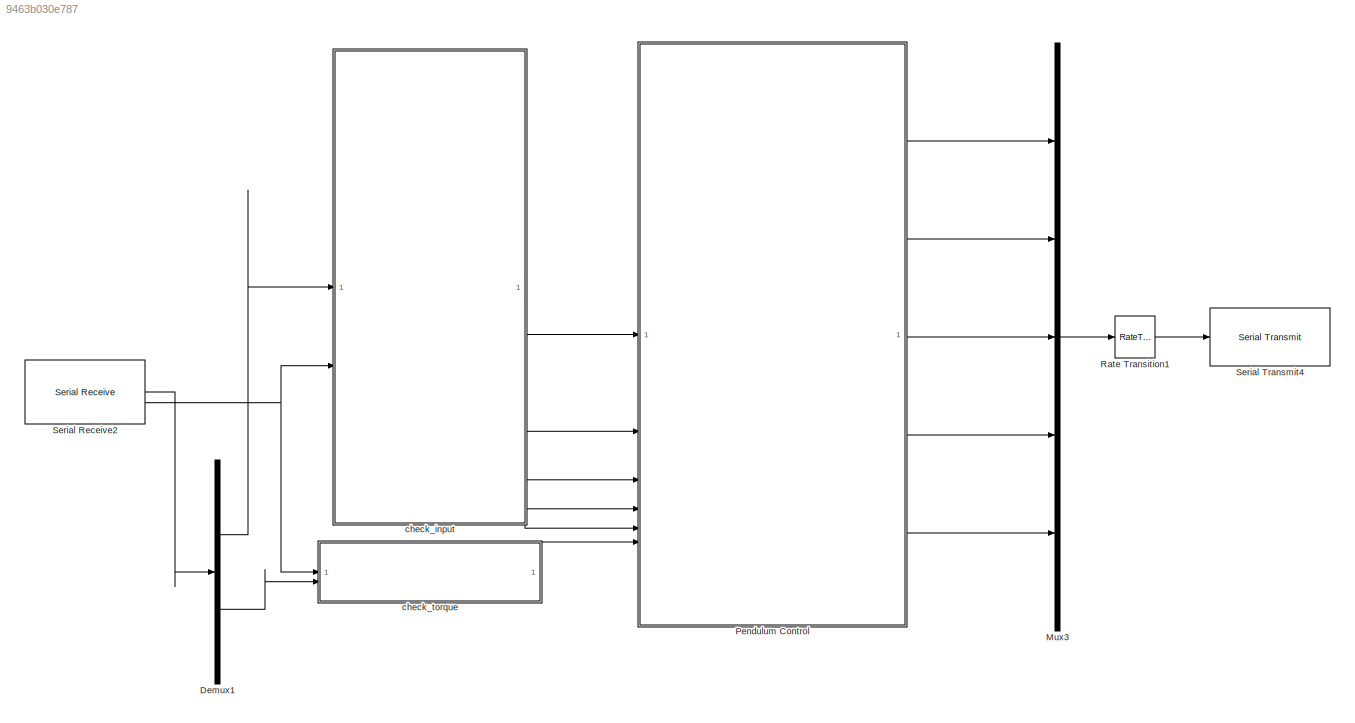
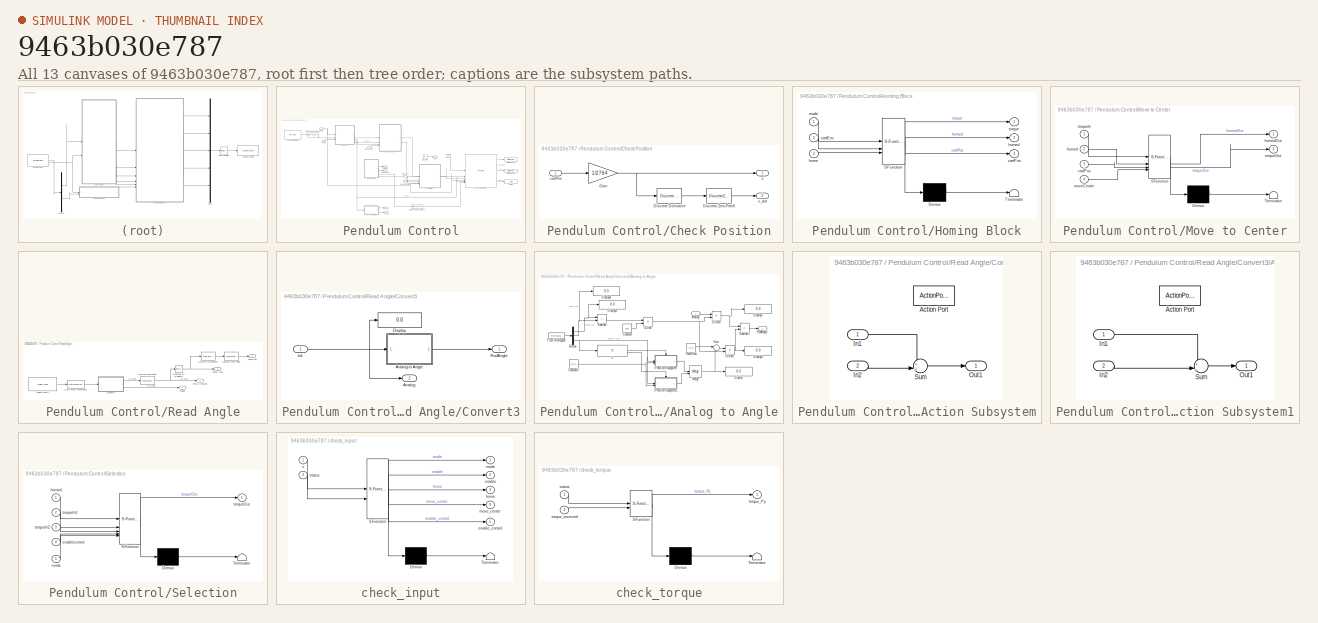
[diagram: thumbnail index - all 13 canvases of the model, root first then tree order]
MODEL slx_9463b030e787
KIND model
CONFIG AbsTol = auto
CONFIG EnableMultiTasking = on
CONFIG FixedStep = Tc
CONFIG MaxStep = auto
CONFIG MinStep = auto
CONFIG RelTol = 1e-3
CONFIG SampleTimeConstraint = Unconstrained
CONFIG SolverName = FixedStepAuto
CONFIG StartTime = 0.0
CONFIG StopTime = 10.0
BLOCK [Demux] Demux1
  Outputs = 2
BLOCK [Mux] Mux3
  DisplayOption = bar
  Inputs = 5
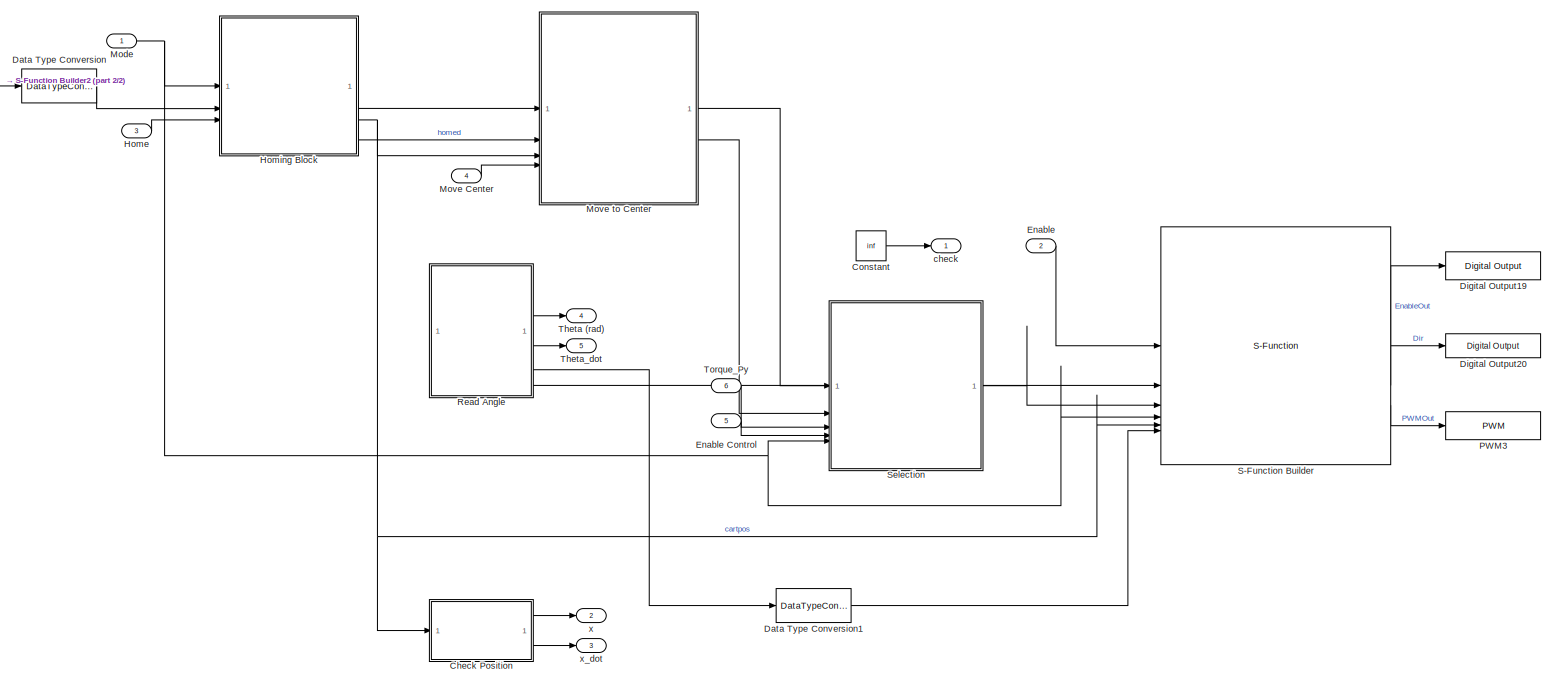
[diagram: Pendulum Control - part 1/2, most of the canvas]
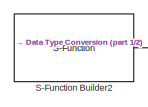
[diagram: Pendulum Control - part 2/2, top left region]
BLOCK [SubSystem] Pendulum Control
BLOCK [SubSystem] Pendulum Control/Check Position
BLOCK [Reference] Pendulum Control/Check Position/Discrete Derivative  REF=simulink/Discrete/Discrete Derivative
  SourceBlock = simulink/Discrete/Discrete Derivative
  SourceType = Discrete Derivative
BLOCK [DiscreteZeroPole] Pendulum Control/Check Position/Discrete Zero-Pole6
  Gain = 20*Tc/2
  Poles = [e^(-20*Tc)]
  SampleTime = -1
  Zeros = [-e^(-20*Tc)]
BLOCK [Gain] Pendulum Control/Check Position/Gain
  Gain = 1/2764
BLOCK [Inport] Pendulum Control/Check Position/cartPos
BLOCK [Outport] Pendulum Control/Check Position/x
BLOCK [Outport] Pendulum Control/Check Position/x_dot
  Port = 2
BLOCK [Constant] Pendulum Control/Constant
  OutDataTypeStr = double
  Value = inf
BLOCK [DataTypeConversion] Pendulum Control/Data Type Conversion
  RndMeth = Floor
  SaturateOnIntegerOverflow = off
BLOCK [DataTypeConversion] Pendulum Control/Data Type Conversion1
  RndMeth = Floor
  SaturateOnIntegerOverflow = off
BLOCK [Reference] Pendulum Control/Digital Output19  REF=arduinolib/Digital Output
  SourceBlock = arduinolib/Digital Output
  SourceType = Arduino Digital Output
BLOCK [Reference] Pendulum Control/Digital Output20  REF=arduinolib/Digital Output
  SourceBlock = arduinolib/Digital Output
  SourceType = Arduino Digital Output
BLOCK [Inport] Pendulum Control/Enable
  Port = 2
BLOCK [Inport] Pendulum Control/Enable Control
  Port = 5
BLOCK [Inport] Pendulum Control/Home
  Port = 3
BLOCK [SubSystem] Pendulum Control/Homing Block
  ErrorFcn = Stateflow.Translate.translate
  PermitHierarchicalResolution = ExplicitOnly
  SFBlockType = MATLAB Function
  TreatAsAtomicUnit = on
BLOCK [Demux] Pendulum Control/Homing Block/ Demux 
  Outputs = 1
BLOCK [S-Function] Pendulum Control/Homing Block/ SFunction 
  EnableBusSupport = on
  FunctionName = sf_sfun
  PortCounts = [3 4]
  SFcnIsStateOwnerBlock = off
  SFunctionDeploymentMode = off
  Tag = Stateflow S-Function 5
BLOCK [Terminator] Pendulum Control/Homing Block/ Terminator 
BLOCK [Inport] Pendulum Control/Homing Block/cartEnc
  Port = 2
BLOCK [Outport] Pendulum Control/Homing Block/cartPos
  Port = 3
BLOCK [Inport] Pendulum Control/Homing Block/home
  Port = 3
BLOCK [Outport] Pendulum Control/Homing Block/homed
  Port = 2
BLOCK [Inport] Pendulum Control/Homing Block/mode
BLOCK [Outport] Pendulum Control/Homing Block/torque
BLOCK [Inport] Pendulum Control/Mode
BLOCK [Inport] Pendulum Control/Move Center
  Port = 4
BLOCK [SubSystem] Pendulum Control/Move to Center
  ErrorFcn = Stateflow.Translate.translate
  PermitHierarchicalResolution = ExplicitOnly
  SFBlockType = MATLAB Function
  TreatAsAtomicUnit = on
BLOCK [Demux] Pendulum Control/Move to Center/ Demux 
  Outputs = 1
BLOCK [S-Function] Pendulum Control/Move to Center/ SFunction 
  EnableBusSupport = on
  FunctionName = sf_sfun
  PortCounts = [4 3]
  SFcnIsStateOwnerBlock = off
  SFunctionDeploymentMode = off
  Tag = Stateflow S-Function 6
BLOCK [Terminator] Pendulum Control/Move to Center/ Terminator 
BLOCK [Inport] Pendulum Control/Move to Center/cartPos
  Port = 3
BLOCK [Inport] Pendulum Control/Move to Center/homed
  Port = 2
BLOCK [Outport] Pendulum Control/Move to Center/homedOut
BLOCK [Inport] Pendulum Control/Move to Center/moveCenter
  Port = 4
BLOCK [Inport] Pendulum Control/Move to Center/torqueIn
BLOCK [Outport] Pendulum Control/Move to Center/torqueOut
  Port = 2
BLOCK [Reference] Pendulum Control/PWM3  REF=arduinolib/PWM
  SourceBlock = arduinolib/PWM
  SourceType = Arduino PWM
BLOCK [SubSystem] Pendulum Control/Read Angle
BLOCK [Outport] Pendulum Control/Read Angle/Analog
  Port = 4
BLOCK [Reference] Pendulum Control/Read Angle/Analog Input3  REF=arduinolib/Analog Input
  SourceBlock = arduinolib/Analog Input
  SourceType = Arduino Analog Input
BLOCK [SubSystem] Pendulum Control/Read Angle/Convert3
BLOCK [Outport] Pendulum Control/Read Angle/Convert3/Analog
  Port = 2
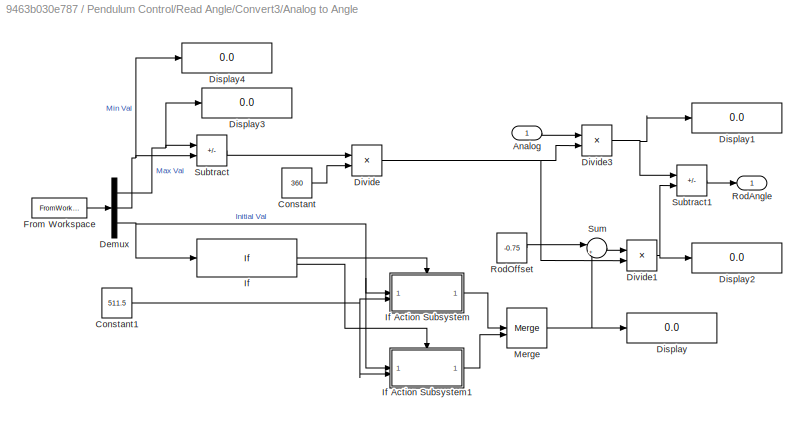
BLOCK [SubSystem] Pendulum Control/Read Angle/Convert3/Analog to Angle
BLOCK [Inport] Pendulum Control/Read Angle/Convert3/Analog to Angle/Analog
BLOCK [Constant] Pendulum Control/Read Angle/Convert3/Analog to Angle/Constant
  Value = 360
BLOCK [Constant] Pendulum Control/Read Angle/Convert3/Analog to Angle/Constant1
  Value = 511.5
BLOCK [Demux] Pendulum Control/Read Angle/Convert3/Analog to Angle/Demux
  Outputs = 3
BLOCK [Display] Pendulum Control/Read Angle/Convert3/Analog to Angle/Display
  Decimation = 1
BLOCK [Display] Pendulum Control/Read Angle/Convert3/Analog to Angle/Display1
  Decimation = 1
BLOCK [Display] Pendulum Control/Read Angle/Convert3/Analog to Angle/Display2
  Decimation = 1
BLOCK [Display] Pendulum Control/Read Angle/Convert3/Analog to Angle/Display3
  Decimation = 1
BLOCK [Display] Pendulum Control/Read Angle/Convert3/Analog to Angle/Display4
  Decimation = 1
BLOCK [Product] Pendulum Control/Read Angle/Convert3/Analog to Angle/Divide
  Inputs = */
BLOCK [Product] Pendulum Control/Read Angle/Convert3/Analog to Angle/Divide1
  Inputs = */
BLOCK [Product] Pendulum Control/Read Angle/Convert3/Analog to Angle/Divide3
  Inputs = */
BLOCK [FromWorkspace] Pendulum Control/Read Angle/Convert3/Analog to Angle/From Workspace
  VariableName = Calibration
BLOCK [If] Pendulum Control/Read Angle/Convert3/Analog to Angle/If
  IfExpression = u1 < 511.5
BLOCK [SubSystem] Pendulum Control/Read Angle/Convert3/Analog to Angle/If Action Subsystem
  TreatAsAtomicUnit = on
BLOCK [ActionPort] Pendulum Control/Read Angle/Convert3/Analog to Angle/If Action Subsystem/Action Port
  ActionPortLabel = if(u1 < 511.5)
BLOCK [Inport] Pendulum Control/Read Angle/Convert3/Analog to Angle/If Action Subsystem/In1
BLOCK [Inport] Pendulum Control/Read Angle/Convert3/Analog to Angle/If Action Subsystem/In2
  Port = 2
BLOCK [Outport] Pendulum Control/Read Angle/Convert3/Analog to Angle/If Action Subsystem/Out1
  VectorParamsAs1DForOutWhenUnconnected = off
BLOCK [Sum] Pendulum Control/Read Angle/Convert3/Analog to Angle/If Action Subsystem/Sum
  Inputs = ++|
BLOCK [SubSystem] Pendulum Control/Read Angle/Convert3/Analog to Angle/If Action Subsystem1
  TreatAsAtomicUnit = on
BLOCK [ActionPort] Pendulum Control/Read Angle/Convert3/Analog to Angle/If Action Subsystem1/Action Port
  ActionPortLabel = else
BLOCK [Inport] Pendulum Control/Read Angle/Convert3/Analog to Angle/If Action Subsystem1/In1
BLOCK [Inport] Pendulum Control/Read Angle/Convert3/Analog to Angle/If Action Subsystem1/In2
  Port = 2
BLOCK [Outport] Pendulum Control/Read Angle/Convert3/Analog to Angle/If Action Subsystem1/Out1
  VectorParamsAs1DForOutWhenUnconnected = off
BLOCK [Sum] Pendulum Control/Read Angle/Convert3/Analog to Angle/If Action Subsystem1/Sum
  Inputs = +-|
BLOCK [Merge] Pendulum Control/Read Angle/Convert3/Analog to Angle/Merge
BLOCK [Outport] Pendulum Control/Read Angle/Convert3/Analog to Angle/RodAngle
BLOCK [Constant] Pendulum Control/Read Angle/Convert3/Analog to Angle/RodOffset
  Value = -0.75
BLOCK [Sum] Pendulum Control/Read Angle/Convert3/Analog to Angle/Subtract
  IconShape = rectangular
  Inputs = +-
BLOCK [Sum] Pendulum Control/Read Angle/Convert3/Analog to Angle/Subtract1
  IconShape = rectangular
  Inputs = +-
BLOCK [Sum] Pendulum Control/Read Angle/Convert3/Analog to Angle/Sum
  Inputs = |++
BLOCK [Display] Pendulum Control/Read Angle/Convert3/Display
  Decimation = 1
BLOCK [Inport] Pendulum Control/Read Angle/Convert3/In1
BLOCK [Outport] Pendulum Control/Read Angle/Convert3/RodAngle
BLOCK [DataTypeConversion] Pendulum Control/Read Angle/Data Type Conversion3
  RndMeth = Floor
  SaturateOnIntegerOverflow = off
BLOCK [Reference] Pendulum Control/Read Angle/Degrees to Radians2  REF=simulink_extras/Transformations/Degrees to
Radians
  SourceBlock = simulink_extras/Transformations/Degrees to\nRadians
  SourceType = DegreesToRadians
BLOCK [Reference] Pendulum Control/Read Angle/Discrete Derivative2  REF=simulink/Discrete/Discrete Derivative
  SourceBlock = simulink/Discrete/Discrete Derivative
  SourceType = Discrete Derivative
BLOCK [DiscreteZeroPole] Pendulum Control/Read Angle/Discrete Zero-Pole1
  Gain = 15*Tc/2
  Poles = [e^(-15*Tc)]
  SampleTime = -1
  Zeros = [-e^(-15*Tc)]
BLOCK [DiscreteZeroPole] Pendulum Control/Read Angle/Discrete Zero-Pole6
  Gain = 20*Tc/2
  Poles = [e^(-20*Tc)]
  SampleTime = -1
  Zeros = [-e^(-20*Tc)]
BLOCK [Outport] Pendulum Control/Read Angle/Theta (Degree)
BLOCK [Outport] Pendulum Control/Read Angle/Theta (rad)
  Port = 2
BLOCK [Outport] Pendulum Control/Read Angle/Theta_dot
  Port = 3
BLOCK [S-Function] Pendulum Control/S-Function Builder
  CopyFcn = set_param(gcbh,'LinkStatus','none')
  EnableBusSupport = off
  FunctionName = sfcn_toPins
  InitFcn = try, set_param(gcb,'FunctionName','sfcn_toPins'), end
  OpenFcn = sfunctionwizard(gcbh)
  PreSaveFcn = try, set_param(gcb,'FunctionName','sfcn_toPins'), end
  SFcnIsStateOwnerBlock = off
  SFunctionDeploymentMode = off
  SFunctionModules = sfcn_toPins_wrapper.c
BLOCK [S-Function] Pendulum Control/S-Function Builder2
  CopyFcn = set_param(gcbh,'LinkStatus','none')
  EnableBusSupport = off
  FunctionName = sfcn_encoder
  InitFcn = try, set_param(gcb,'FunctionName','sfcn_encoder'), end
  OpenFcn = sfunctionwizard(gcbh)
  Parameters = uint8(0),uint8(3),uint8(35)
  PreSaveFcn = try, set_param(gcb,'FunctionName','sfcn_encoder'), end
  SFcnIsStateOwnerBlock = off
  SFunctionDeploymentMode = off
  SFunctionModules = sfcn_encoder_wrapper.c
BLOCK [SubSystem] Pendulum Control/Selection
  ErrorFcn = Stateflow.Translate.translate
  PermitHierarchicalResolution = ExplicitOnly
  SFBlockType = MATLAB Function
  TreatAsAtomicUnit = on
BLOCK [Demux] Pendulum Control/Selection/ Demux 
  Outputs = 1
BLOCK [S-Function] Pendulum Control/Selection/ SFunction 
  EnableBusSupport = on
  FunctionName = sf_sfun
  PortCounts = [5 2]
  SFcnIsStateOwnerBlock = off
  SFunctionDeploymentMode = off
  Tag = Stateflow S-Function 12
BLOCK [Terminator] Pendulum Control/Selection/ Terminator 
BLOCK [Inport] Pendulum Control/Selection/enablecontrol
  Port = 4
BLOCK [Inport] Pendulum Control/Selection/homed
BLOCK [Inport] Pendulum Control/Selection/mode
  Port = 5
BLOCK [Inport] Pendulum Control/Selection/torqueIn1
  Port = 2
BLOCK [Inport] Pendulum Control/Selection/torqueIn2
  Port = 3
BLOCK [Outport] Pendulum Control/Selection/torqueOut
BLOCK [Outport] Pendulum Control/Theta (rad)
  Port = 4
BLOCK [Outport] Pendulum Control/Theta_dot
  Port = 5
BLOCK [Inport] Pendulum Control/Torque_Py
  Port = 6
BLOCK [Outport] Pendulum Control/check
BLOCK [Outport] Pendulum Control/x
  Port = 2
BLOCK [Outport] Pendulum Control/x_dot
  Port = 3
BLOCK [RateTransition] Rate Transition1
  OutPortSampleTime = 0.05
BLOCK [Reference] Serial Receive2  REF=arduinolib/Serial Receive
  SourceBlock = arduinolib/Serial Receive
  SourceType = Arduino Serial Receive
BLOCK [Reference] Serial Transmit4  REF=arduinolib/Serial Transmit
  SourceBlock = arduinolib/Serial Transmit
  SourceType = Arduino Serial Transmit
BLOCK [SubSystem] check_input
  ErrorFcn = Stateflow.Translate.translate
  PermitHierarchicalResolution = ExplicitOnly
  SFBlockType = MATLAB Function
  TreatAsAtomicUnit = on
BLOCK [Demux] check_input/ Demux 
  Outputs = 1
BLOCK [S-Function] check_input/ SFunction 
  EnableBusSupport = on
  FunctionName = sf_sfun
  PortCounts = [2 6]
  SFcnIsStateOwnerBlock = off
  SFunctionDeploymentMode = off
  Tag = Stateflow S-Function 4
BLOCK [Terminator] check_input/ Terminator 
BLOCK [Outport] check_input/enable
  Port = 2
BLOCK [Outport] check_input/enable_control
  Port = 5
BLOCK [Outport] check_input/home
  Port = 3
BLOCK [Outport] check_input/mode
BLOCK [Outport] check_input/move_center
  Port = 4
BLOCK [Inport] check_input/status
  Port = 2
BLOCK [Inport] check_input/v
BLOCK [SubSystem] check_torque
  ErrorFcn = Stateflow.Translate.translate
  PermitHierarchicalResolution = ExplicitOnly
  SFBlockType = MATLAB Function
  TreatAsAtomicUnit = on
BLOCK [Demux] check_torque/ Demux 
  Outputs = 1
BLOCK [S-Function] check_torque/ SFunction 
  EnableBusSupport = on
  FunctionName = sf_sfun
  PortCounts = [2 2]
  SFcnIsStateOwnerBlock = off
  SFunctionDeploymentMode = off
  Tag = Stateflow S-Function 1
BLOCK [Terminator] check_torque/ Terminator 
BLOCK [Inport] check_torque/status
BLOCK [Outport] check_torque/torque_Py
BLOCK [Inport] check_torque/torque_received
  Port = 2
LINE Demux1:1 -> check_input:1
LINE Demux1:2 -> check_torque:2
LINE Mux3:1 -> Rate Transition1:1
LINE Pendulum Control/Check Position/Discrete Derivative:1 -> Pendulum Control/Check Position/Discrete Zero-Pole6:1
LINE Pendulum Control/Check Position/Discrete Zero-Pole6:1 -> Pendulum Control/Check Position/x_dot:1
NET Pendulum Control/Check Position/Gain:1 -> Pendulum Control/Check Position/Discrete Derivative:1, Pendulum Control/Check Position/x:1
LINE Pendulum Control/Check Position/cartPos:1 -> Pendulum Control/Check Position/Gain:1
LINE Pendulum Control/Check Position:1 -> Pendulum Control/x:1
LINE Pendulum Control/Check Position:2 -> Pendulum Control/x_dot:1
LINE Pendulum Control/Constant:1 -> Pendulum Control/check:1
LINE Pendulum Control/Data Type Conversion1:1 -> Pendulum Control/S-Function Builder:6
LINE Pendulum Control/Data Type Conversion:1 -> Pendulum Control/Homing Block:2
LINE Pendulum Control/Enable Control:1 -> Pendulum Control/Selection:4
LINE Pendulum Control/Enable:1 -> Pendulum Control/S-Function Builder:1
LINE Pendulum Control/Home:1 -> Pendulum Control/Homing Block:3
LINE Pendulum Control/Homing Block:1 -> Pendulum Control/Move to Center:1
LINE Pendulum Control/Homing Block:2 -> Pendulum Control/Move to Center:2
NET Pendulum Control/Homing Block:3 -> Pendulum Control/Check Position:1, Pendulum Control/Move to Center:3, Pendulum Control/S-Function Builder:5
NET Pendulum Control/Mode:1 -> Pendulum Control/Homing Block:1, Pendulum Control/S-Function Builder:4, Pendulum Control/Selection:5
LINE Pendulum Control/Move Center:1 -> Pendulum Control/Move to Center:4
LINE Pendulum Control/Move to Center:1 -> Pendulum Control/Selection:1
LINE Pendulum Control/Move to Center:2 -> Pendulum Control/Selection:2
LINE Pendulum Control/Read Angle/Analog Input3:1 -> Pendulum Control/Read Angle/Data Type Conversion3:1
LINE Pendulum Control/Read Angle/Convert3/Analog to Angle/Analog:1 -> Pendulum Control/Read Angle/Convert3/Analog to Angle/Divide3:1
NET Pendulum Control/Read Angle/Convert3/Analog to Angle/Constant1:1 -> Pendulum Control/Read Angle/Convert3/Analog to Angle/If Action Subsystem1:2, Pendulum Control/Read Angle/Convert3/Analog to Angle/If Action Subsystem:2
LINE Pendulum Control/Read Angle/Convert3/Analog to Angle/Constant:1 -> Pendulum Control/Read Angle/Convert3/Analog to Angle/Divide:2
NET Pendulum Control/Read Angle/Convert3/Analog to Angle/Demux:1 -> Pendulum Control/Read Angle/Convert3/Analog to Angle/Display3:1, Pendulum Control/Read Angle/Convert3/Analog to Angle/Subtract:1
NET Pendulum Control/Read Angle/Convert3/Analog to Angle/Demux:2 -> Pendulum Control/Read Angle/Convert3/Analog to Angle/Display4:1, Pendulum Control/Read Angle/Convert3/Analog to Angle/Subtract:2
NET Pendulum Control/Read Angle/Convert3/Analog to Angle/Demux:3 -> Pendulum Control/Read Angle/Convert3/Analog to Angle/If Action Subsystem1:1, Pendulum Control/Read Angle/Convert3/Analog to Angle/If Action Subsystem:1, Pendulum Control/Read Angle/Convert3/Analog to Angle/If:1
NET Pendulum Control/Read Angle/Convert3/Analog to Angle/Divide1:1 -> Pendulum Control/Read Angle/Convert3/Analog to Angle/Display2:1, Pendulum Control/Read Angle/Convert3/Analog to Angle/Subtract1:2
NET Pendulum Control/Read Angle/Convert3/Analog to Angle/Divide3:1 -> Pendulum Control/Read Angle/Convert3/Analog to Angle/Display1:1, Pendulum Control/Read Angle/Convert3/Analog to Angle/Subtract1:1
NET Pendulum Control/Read Angle/Convert3/Analog to Angle/Divide:1 -> Pendulum Control/Read Angle/Convert3/Analog to Angle/Divide1:2, Pendulum Control/Read Angle/Convert3/Analog to Angle/Divide3:2
LINE Pendulum Control/Read Angle/Convert3/Analog to Angle/From Workspace:1 -> Pendulum Control/Read Angle/Convert3/Analog to Angle/Demux:1
LINE Pendulum Control/Read Angle/Convert3/Analog to Angle/If Action Subsystem/In1:1 -> Pendulum Control/Read Angle/Convert3/Analog to Angle/If Action Subsystem/Sum:1
LINE Pendulum Control/Read Angle/Convert3/Analog to Angle/If Action Subsystem/In2:1 -> Pendulum Control/Read Angle/Convert3/Analog to Angle/If Action Subsystem/Sum:2
LINE Pendulum Control/Read Angle/Convert3/Analog to Angle/If Action Subsystem/Sum:1 -> Pendulum Control/Read Angle/Convert3/Analog to Angle/If Action Subsystem/Out1:1
LINE Pendulum Control/Read Angle/Convert3/Analog to Angle/If Action Subsystem1/In1:1 -> Pendulum Control/Read Angle/Convert3/Analog to Angle/If Action Subsystem1/Sum:1
LINE Pendulum Control/Read Angle/Convert3/Analog to Angle/If Action Subsystem1/In2:1 -> Pendulum Control/Read Angle/Convert3/Analog to Angle/If Action Subsystem1/Sum:2
LINE Pendulum Control/Read Angle/Convert3/Analog to Angle/If Action Subsystem1/Sum:1 -> Pendulum Control/Read Angle/Convert3/Analog to Angle/If Action Subsystem1/Out1:1
LINE Pendulum Control/Read Angle/Convert3/Analog to Angle/If Action Subsystem1:1 -> Pendulum Control/Read Angle/Convert3/Analog to Angle/Merge:2
LINE Pendulum Control/Read Angle/Convert3/Analog to Angle/If Action Subsystem:1 -> Pendulum Control/Read Angle/Convert3/Analog to Angle/Merge:1
LINE Pendulum Control/Read Angle/Convert3/Analog to Angle/If:1 -> Pendulum Control/Read Angle/Convert3/Analog to Angle/If Action Subsystem:ifaction
LINE Pendulum Control/Read Angle/Convert3/Analog to Angle/If:2 -> Pendulum Control/Read Angle/Convert3/Analog to Angle/If Action Subsystem1:ifaction
NET Pendulum Control/Read Angle/Convert3/Analog to Angle/Merge:1 -> Pendulum Control/Read Angle/Convert3/Analog to Angle/Display:1, Pendulum Control/Read Angle/Convert3/Analog to Angle/Sum:2
LINE Pendulum Control/Read Angle/Convert3/Analog to Angle/RodOffset:1 -> Pendulum Control/Read Angle/Convert3/Analog to Angle/Sum:1
LINE Pendulum Control/Read Angle/Convert3/Analog to Angle/Subtract1:1 -> Pendulum Control/Read Angle/Convert3/Analog to Angle/RodAngle:1
LINE Pendulum Control/Read Angle/Convert3/Analog to Angle/Subtract:1 -> Pendulum Control/Read Angle/Convert3/Analog to Angle/Divide:1
LINE Pendulum Control/Read Angle/Convert3/Analog to Angle/Sum:1 -> Pendulum Control/Read Angle/Convert3/Analog to Angle/Divide1:1
LINE Pendulum Control/Read Angle/Convert3/Analog to Angle:1 -> Pendulum Control/Read Angle/Convert3/RodAngle:1
NET Pendulum Control/Read Angle/Convert3/In1:1 -> Pendulum Control/Read Angle/Convert3/Analog to Angle:1, Pendulum Control/Read Angle/Convert3/Analog:1, Pendulum Control/Read Angle/Convert3/Display:1
LINE Pendulum Control/Read Angle/Convert3:1 -> Pendulum Control/Read Angle/Discrete Zero-Pole1:1
LINE Pendulum Control/Read Angle/Convert3:2 -> Pendulum Control/Read Angle/Analog:1
LINE Pendulum Control/Read Angle/Data Type Conversion3:1 -> Pendulum Control/Read Angle/Convert3:1
NET Pendulum Control/Read Angle/Degrees to Radians2:1 -> Pendulum Control/Read Angle/Discrete Derivative2:1, Pendulum Control/Read Angle/Theta (rad):1
LINE Pendulum Control/Read Angle/Discrete Derivative2:1 -> Pendulum Control/Read Angle/Discrete Zero-Pole6:1
NET Pendulum Control/Read Angle/Discrete Zero-Pole1:1 -> Pendulum Control/Read Angle/Degrees to Radians2:1, Pendulum Control/Read Angle/Theta (Degree):1
LINE Pendulum Control/Read Angle/Discrete Zero-Pole6:1 -> Pendulum Control/Read Angle/Theta_dot:1
LINE Pendulum Control/Read Angle:1 -> Pendulum Control/S-Function Builder:2
LINE Pendulum Control/Read Angle:2 -> Pendulum Control/Theta (rad):1
LINE Pendulum Control/Read Angle:3 -> Pendulum Control/Theta_dot:1
LINE Pendulum Control/Read Angle:4 -> Pendulum Control/Data Type Conversion1:1
LINE Pendulum Control/S-Function Builder2:1 -> Pendulum Control/Data Type Conversion:1
LINE Pendulum Control/S-Function Builder:1 -> Pendulum Control/Digital Output19:1
LINE Pendulum Control/S-Function Builder:2 -> Pendulum Control/Digital Output20:1
LINE Pendulum Control/S-Function Builder:3 -> Pendulum Control/PWM3:1
LINE Pendulum Control/Selection:1 -> Pendulum Control/S-Function Builder:3
LINE Pendulum Control/Torque_Py:1 -> Pendulum Control/Selection:3
LINE Pendulum Control:1 -> Mux3:1
LINE Pendulum Control:2 -> Mux3:2
LINE Pendulum Control:3 -> Mux3:3
LINE Pendulum Control:4 -> Mux3:4
LINE Pendulum Control:5 -> Mux3:5
LINE Rate Transition1:1 -> Serial Transmit4:1
LINE Serial Receive2:1 -> Demux1:1
NET Serial Receive2:2 -> check_input:2, check_torque:1
LINE check_input:1 -> Pendulum Control:1
LINE check_input:2 -> Pendulum Control:2
LINE check_input:3 -> Pendulum Control:3
LINE check_input:4 -> Pendulum Control:4
LINE check_input:5 -> Pendulum Control:5
LINE check_torque:1 -> Pendulum Control:6
note: NET lines group one-source signal fan-out (src -> all destinations, sorted); 1:1 wires keep LINE
CHART check_torque states=1 transitions=1
  STATE_LABEL 'eML_blk_kernel()'
  STATE_LABEL 'SCRIPT:\nfunction torque_Py = check_torque(status, torque_received)\n\npersistent state\npersistent torque_value\n\nif(isempty(state))\n    state = 1;\n    torque_value = 0;\nend\n\nif(status == 1)\n    torque_value = torque_received;\nend\n\ntorque_Py = torque_value;\n'
CHART check_input states=1 transitions=1
  STATE_LABEL 'eML_blk_kernel()'
  STATE_LABEL 'SCRIPT:\nfunction [mode, enable, home, move_center, enable_control] = check_input(v, status)\n\npersistent mode_value\npersistent enable_value\npersistent home_value\npersistent move_center_value\npersistent enable_control_value\npersistent state\n\nif(isempty(state))\n    mode_value = 0;\n    enable_value = 0;\n    home_value = 0;\n    move_center_value = 0;\n    enable_control_value = 0;\n    state = 0;\nend\n\nu ...<+531ch>'
CHART Pendulum Control/Homing Block states=1 transitions=1
  STATE_LABEL 'eML_blk_kernel()'
  STATE_LABEL 'SCRIPT:\nfunction [torque,homed,cartPos]=fcn(mode,cartEnc,home)\npersistent torqueval\npersistent state\npersistent precartEnc\npersistent homeval\npersistent counter\npersistent i\npersistent precart\npersistent prepos\npersistent precartArray\n\n% La prima volta isempty(state)==true, quindi inizializza tutte le variabili%\nif isempty(state)\n    torqueval=0;\n    state=0;\n    precartEnc=0;\n    precartArray=[0 ...<+2263ch>'
CHART Pendulum Control/Move to Center states=1 transitions=1
  STATE_LABEL 'eML_blk_kernel()'
  STATE_LABEL "SCRIPT:\nfunction [homedOut, torqueOut] = fcn(torqueIn, homed, cartPos, moveCenter)\n%initializing\npersistent kp;\npersistent set_pos;\nif isempty(kp)\n    set_pos=0;\n    kp=10;\nend\n\nif (homed == 1 && moveCenter==1)    % Se il cart è homed e lo voglio centrare\n   torqueOut=(kp*(set_pos-cartPos));    % Imposto un valore della torque proporzionale all'errore\n   if (abs(set_pos-cartPos)<1)  % Se sono dent...<+115ch>"
CHART Pendulum Control/Selection states=1 transitions=1
  STATE_LABEL 'eML_blk_kernel()'
  STATE_LABEL 'SCRIPT:\nfunction torqueOut  =fcn(homed,torqueIn1,torqueIn2,enablecontrol,mode)\npersistent torqueval\n\nif isempty(torqueval)\n    torqueval=0;\nend\n\nif (mode==0)    % Se è settato su Inizialize\n    torqueval=torqueIn1;    % Seguo la torque dettata dal blocco Move To Center\nend\nif (mode==1)    % Se è settato su Pendulum Control...\n    if (homed==1)   %... ed il cart è homed\n        if (enablecontrol==1...<+223ch>'
CHART  states=0 transitions=0
CHART  states=0 transitions=0
CHART  states=0 transitions=0
CHART  states=0 transitions=0
CHART  states=0 transitions=0
